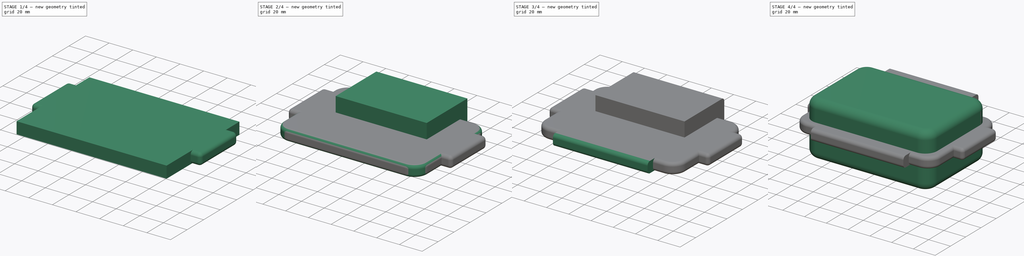
[diagram: build sequence overview — one tinted view per stage of 4, left to right]
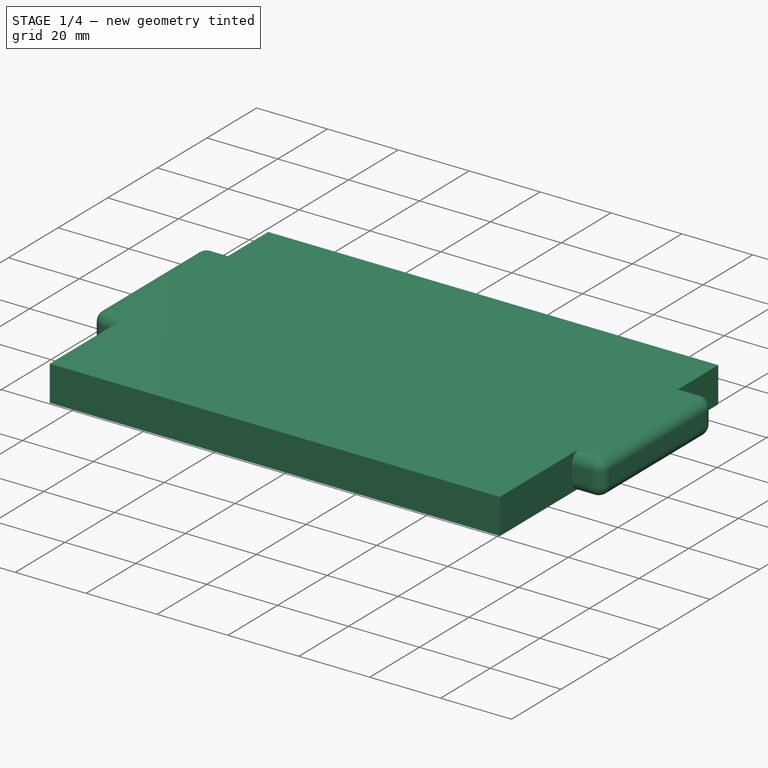
[diagram: stage 1 of 4 — iso view after this stage's code; geometry added in this stage tinted green]
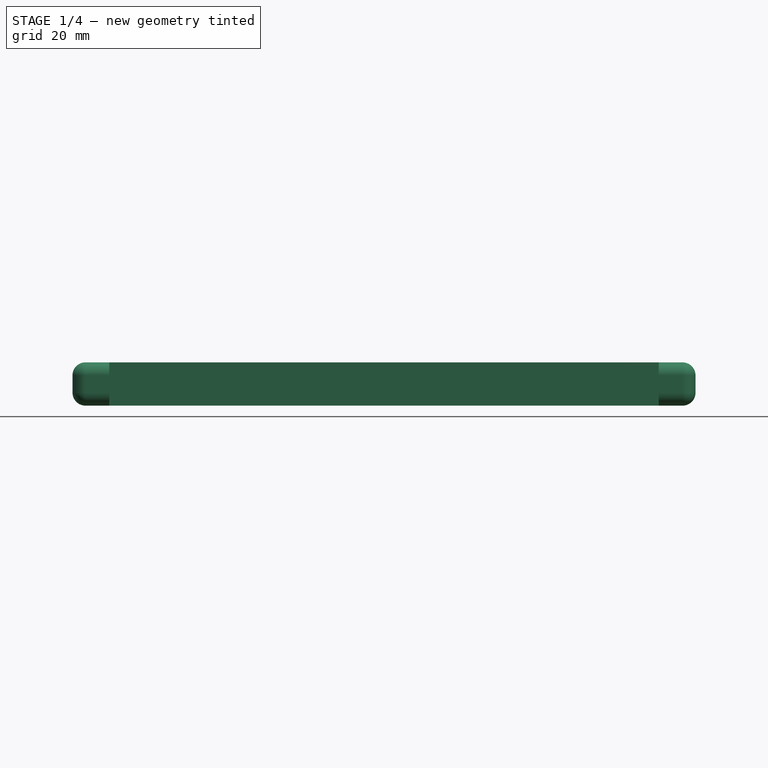
[diagram: stage 1 of 4 — front view after this stage's code; geometry added in this stage tinted green]
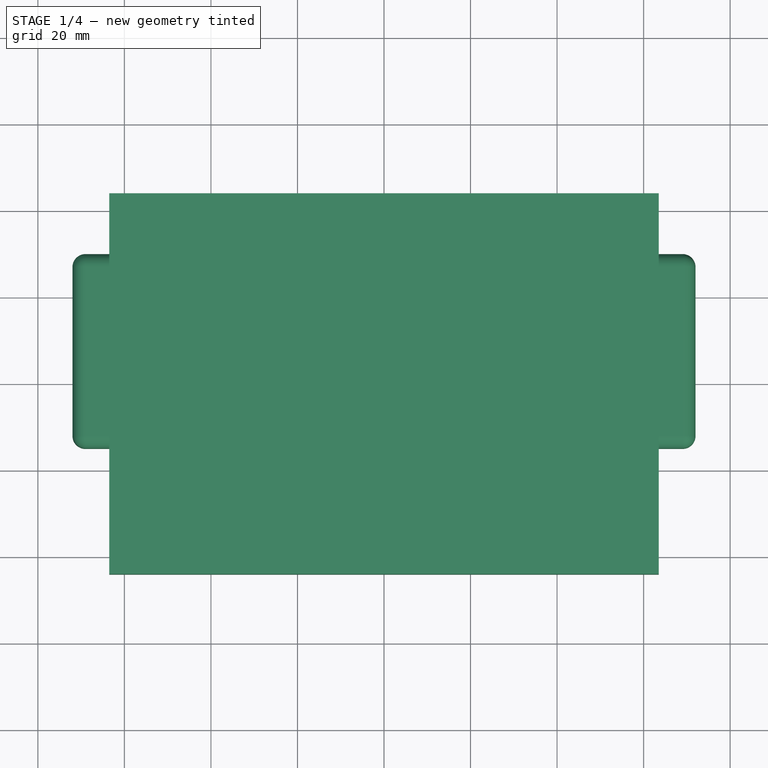
[diagram: stage 1 of 4 — top view after this stage's code; geometry added in this stage tinted green]
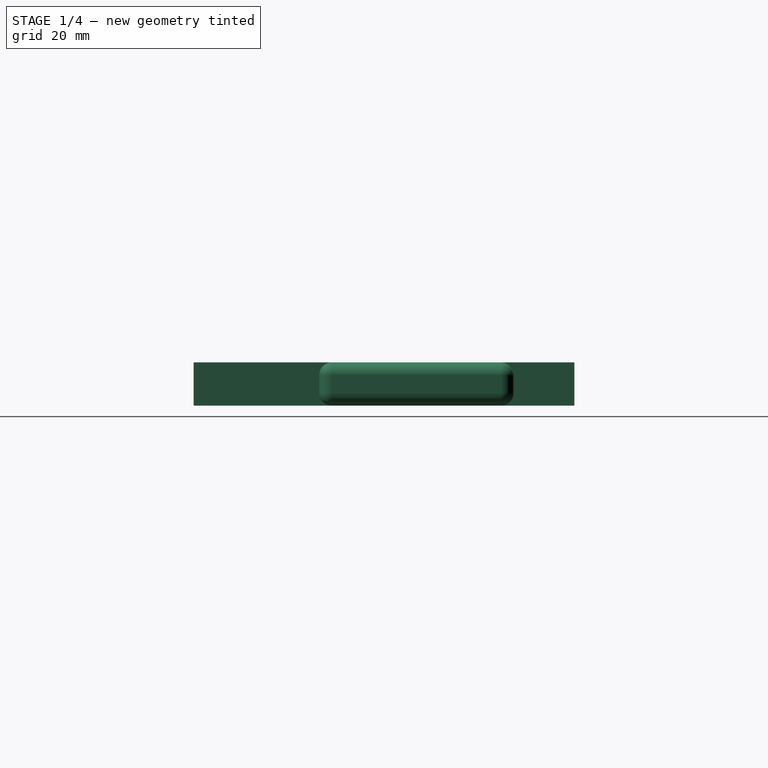
[diagram: stage 1 of 4 — right view after this stage's code; geometry added in this stage tinted green]
FCSTD DOCUMENT  (FreeCAD 0.16RUnknown)
Label: pelicase
License: All rights reserved
LicenseURL: http://en.wikipedia.org/wiki/All_rights_reserved
objects: PartDesign::Fillet×7, Sketcher::SketchObject×5, PartDesign::Pad×5, App::DocumentObjectGroup×1
note: 22 computed .brp shape members not serialized (recipe doc carries the construction recipe); baked Part::Feature solids carry a one-line shape summary decoded from their .brp

FEATURE [Sketcher::SketchObject] Sketch001
  Placement = pos=(0,0,22) rot=(0,0,1;0rad)
  sketch-geometry (4):
    g0: LineSegment StartX=-63.5 StartY=44 StartZ=0 EndX=63.5 EndY=44 EndZ=0
    g1: LineSegment StartX=63.5 StartY=44 StartZ=0 EndX=63.5 EndY=-44 EndZ=0
    g2: LineSegment StartX=63.5 StartY=-44 StartZ=0 EndX=-63.5 EndY=-44 EndZ=0
    g3: LineSegment StartX=-63.5 StartY=-44 StartZ=0 EndX=-63.5 EndY=44 EndZ=0
  constraints (12):
    c: Coincident(g0,g1)
    c: Coincident(g1,g2)
    c: Coincident(g2,g3)
    c: Coincident(g3,g0)
    c: Horizontal(g0)
    c: Horizontal(g2)
    c: Vertical(g1)
    c: Vertical(g3)
    c: Symmetric(g0,g1,g-1)
    c: DistanceX(g0,g0) = 127
    c: DistanceY(g3,g3) = 88
    c: Symmetric(g0,g0,g-2)
FEATURE [PartDesign::Pad] Pad001
  Length = 10
  Length2 = 100
  Placement = pos=(0,0,22) rot=(0,0,1;0rad)
  Sketch = -> Sketch001
  Type = 0
FEATURE [Sketcher::SketchObject] Sketch002
  Placement = pos=(0,0,22) rot=(0,0,1;0rad)
  sketch-geometry (4):
    g0: LineSegment StartX=-72 StartY=30 StartZ=0 EndX=72 EndY=30 EndZ=0
    g1: LineSegment StartX=72 StartY=30 StartZ=0 EndX=72 EndY=-15 EndZ=0
    g2: LineSegment StartX=72 StartY=-15 StartZ=0 EndX=-72 EndY=-15 EndZ=0
    g3: LineSegment StartX=-72 StartY=-15 StartZ=0 EndX=-72 EndY=30 EndZ=0
  constraints (12):
    c: Coincident(g0,g1)
    c: Coincident(g1,g2)
    c: Coincident(g2,g3)
    c: Coincident(g3,g0)
    c: Horizontal(g0)
    c: Horizontal(g2)
    c: Vertical(g1)
    c: Vertical(g3)
    c: DistanceY(g3,g3) = 45
    c: DistanceX(g0,g0) = 144
    c: DistanceY(g-1,g0) = 30
    c: Symmetric(g0,g0,g-2)
FEATURE [PartDesign::Pad] Pad002
  Length = 10
  Length2 = 100
  Placement = pos=(0,0,22) rot=(0,0,1;0rad)
  Sketch = -> Sketch002
  Type = 0
FEATURE [PartDesign::Fillet] Fillet006
  Base = -> Pad002 [Edge4,Edge7,Edge10,Edge12,Edge3,Edge6,Edge9,Edge11,Edge1,Edge2,Edge5,Edge8]
  Placement = pos=(0,0,22) rot=(0,0,1;0rad)
  Radius = 3
FEATURE [App::DocumentObjectGroup] Group
  Group = -> [Fillet006,Fillet005,Fillet004,Fillet001,Fillet003]
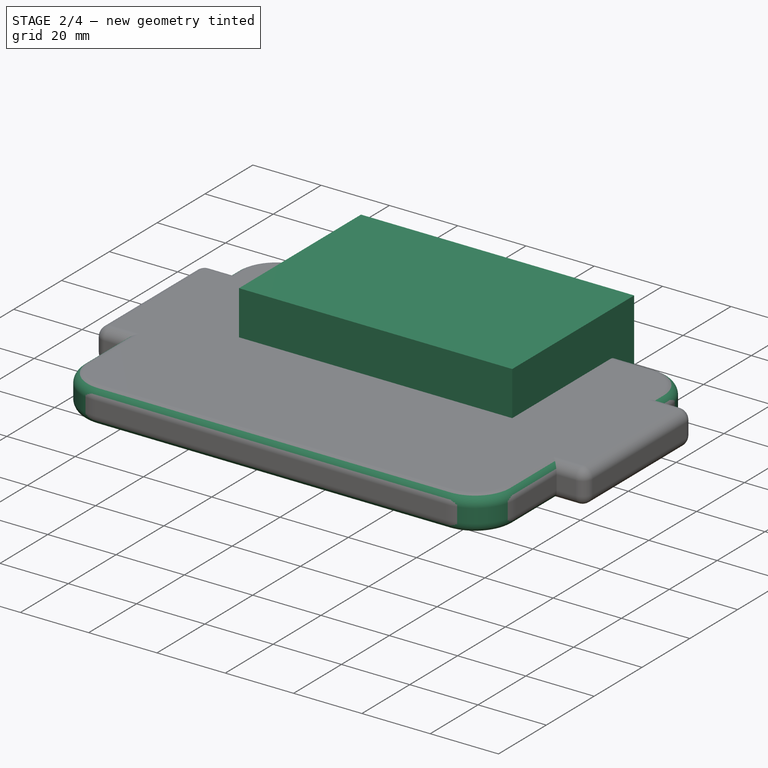
[diagram: stage 2 of 4 — iso view after this stage's code; geometry added in this stage tinted green]
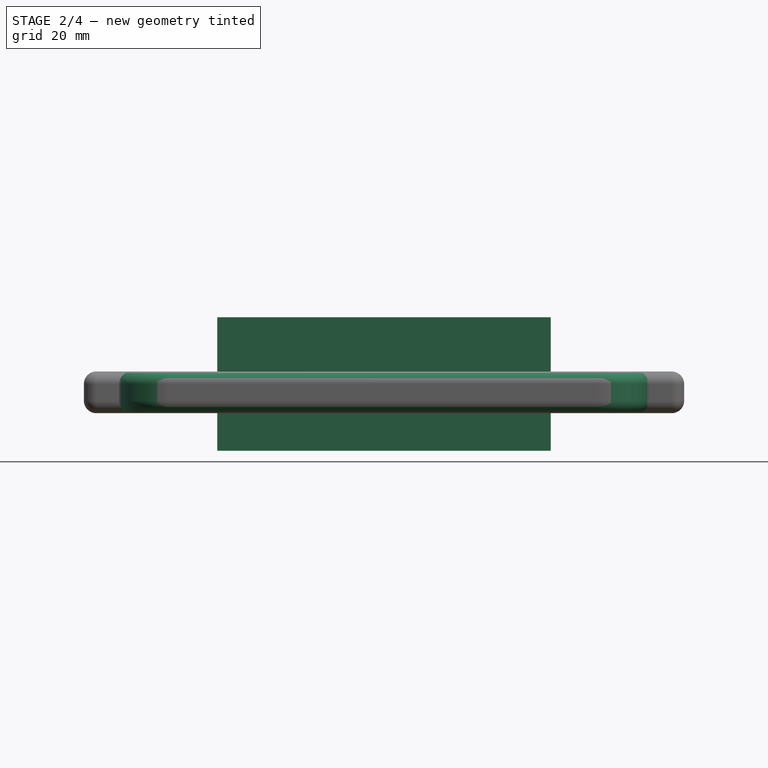
[diagram: stage 2 of 4 — front view after this stage's code; geometry added in this stage tinted green]
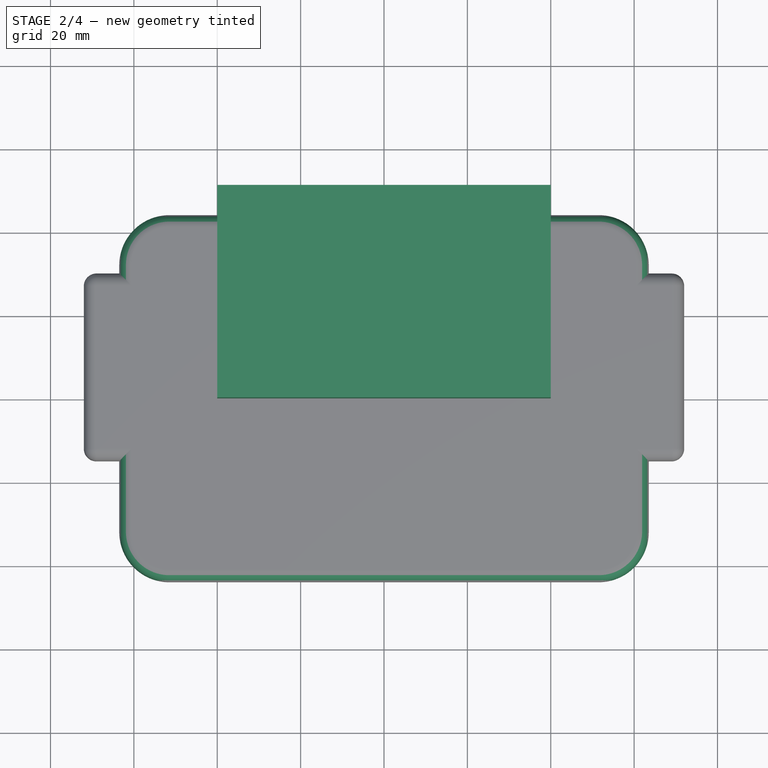
[diagram: stage 2 of 4 — top view after this stage's code; geometry added in this stage tinted green]
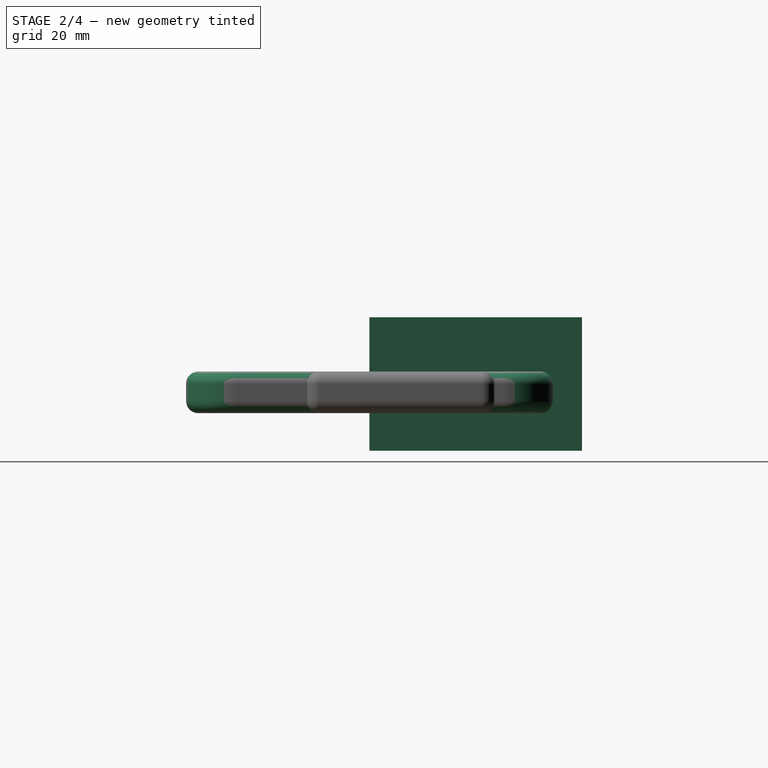
[diagram: stage 2 of 4 — right view after this stage's code; geometry added in this stage tinted green]
FEATURE [Sketcher::SketchObject] Sketch004
  Placement = pos=(0,0,13) rot=(0,0,1;0rad)
  sketch-geometry (4):
    g0: LineSegment StartX=-40 StartY=51 StartZ=0 EndX=40 EndY=51 EndZ=0
    g1: LineSegment StartX=40 StartY=51 StartZ=0 EndX=40 EndY=0 EndZ=0
    g2: LineSegment StartX=40 StartY=0 StartZ=0 EndX=-40 EndY=0 EndZ=0
    g3: LineSegment StartX=-40 StartY=0 StartZ=0 EndX=-40 EndY=51 EndZ=0
  constraints (12):
    c: Coincident(g0,g1)
    c: Coincident(g1,g2)
    c: Coincident(g2,g3)
    c: Coincident(g3,g0)
    c: Horizontal(g0)
    c: Horizontal(g2)
    c: Vertical(g1)
    c: Vertical(g3)
    c: PointOnObject(g1,g-1)
    c: DistanceY(g1,g1) = 51
    c: Symmetric(g0,g0,g-2)
    c: DistanceX(g0,g0) = 80
FEATURE [PartDesign::Pad] Pad004
  Length = 32
  Length2 = 100
  Placement = pos=(0,0,13) rot=(0,0,1;0rad)
  Sketch = -> Sketch004
  Type = 0
FEATURE [PartDesign::Fillet] Fillet002
  Base = -> Pad001 [Edge1,Edge8,Edge5,Edge2]
  Placement = pos=(0,0,22) rot=(0,0,1;0rad)
  Radius = 12
FEATURE [PartDesign::Fillet] Fillet005
  Base = -> Fillet002 [Edge4,Edge13,Edge15,Edge16,Edge17,Edge18,Edge19,Edge20,Edge1,Edge5,Edge6,Edge7,Edge8,Edge9,Edge10,Edge11]
  Placement = pos=(0,0,22) rot=(0,0,1;0rad)
  Radius = 3
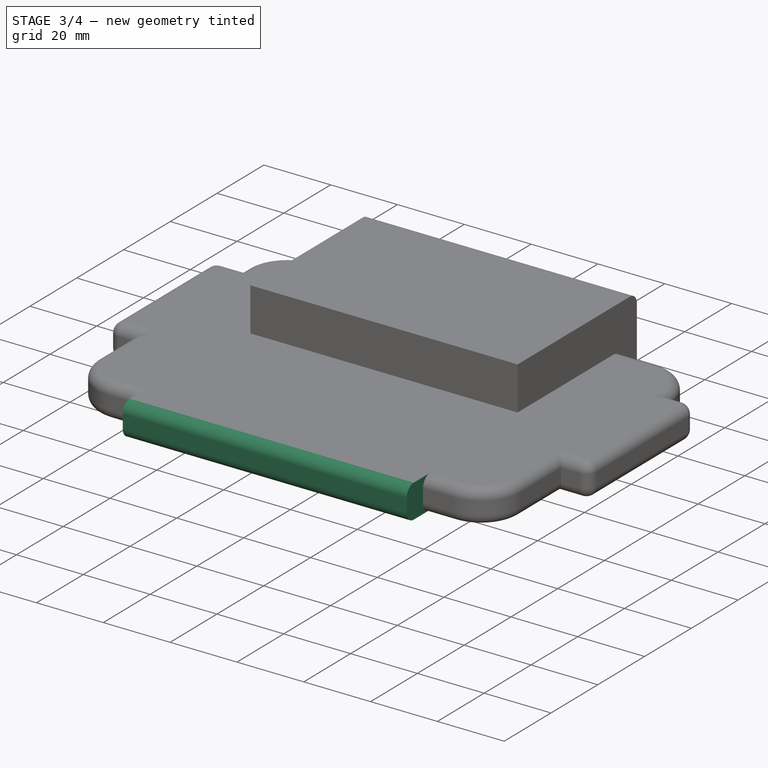
[diagram: stage 3 of 4 — iso view after this stage's code; geometry added in this stage tinted green]
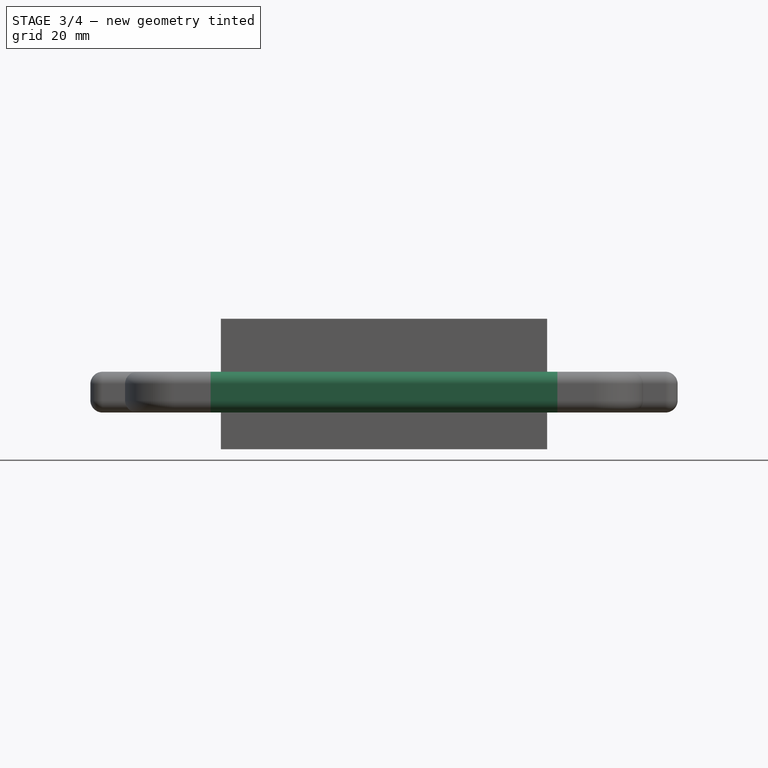
[diagram: stage 3 of 4 — front view after this stage's code; geometry added in this stage tinted green]
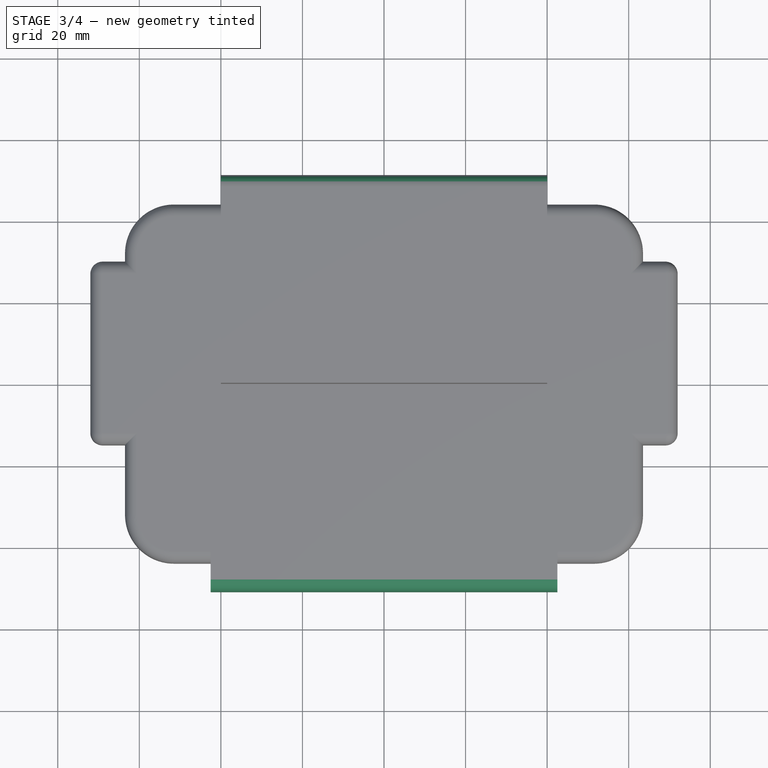
[diagram: stage 3 of 4 — top view after this stage's code; geometry added in this stage tinted green]
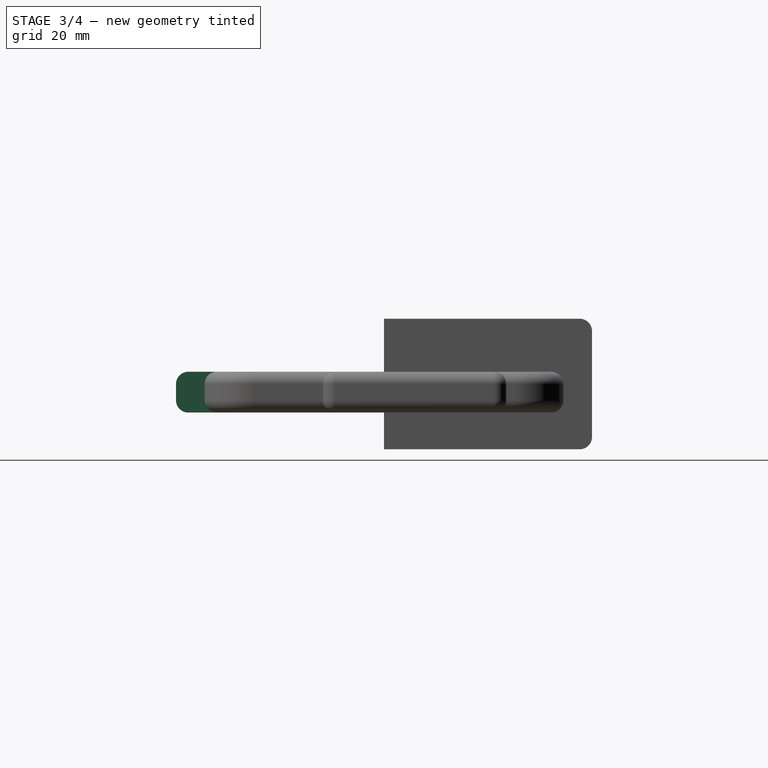
[diagram: stage 3 of 4 — right view after this stage's code; geometry added in this stage tinted green]
FEATURE [Sketcher::SketchObject] Sketch003
  Placement = pos=(0,0,22) rot=(0,0,1;0rad)
  sketch-geometry (4):
    g0: LineSegment StartX=-42.5 StartY=0 StartZ=0 EndX=42.5 EndY=0 EndZ=0
    g1: LineSegment StartX=42.5 StartY=0 StartZ=0 EndX=42.5 EndY=-51 EndZ=0
    g2: LineSegment StartX=42.5 StartY=-51 StartZ=0 EndX=-42.5 EndY=-51 EndZ=0
    g3: LineSegment StartX=-42.5 StartY=-51 StartZ=0 EndX=-42.5 EndY=0 EndZ=0
  constraints (12):
    c: Coincident(g0,g1)
    c: Coincident(g1,g2)
    c: Coincident(g2,g3)
    c: Coincident(g3,g0)
    c: Horizontal(g0)
    c: Horizontal(g2)
    c: Vertical(g1)
    c: Vertical(g3)
    c: DistanceX(g2,g2) = 85
    c: Symmetric(g1,g2,g-2)
    c: PointOnObject(g0,g-1)
    c: DistanceY(g1,g1) = 51
FEATURE [PartDesign::Pad] Pad003
  Length = 10
  Length2 = 100
  Placement = pos=(0,0,22) rot=(0,0,1;0rad)
  Sketch = -> Sketch003
  Type = 0
FEATURE [PartDesign::Fillet] Fillet003
  Base = -> Pad003 [Edge9,Edge10]
  Placement = pos=(0,0,22) rot=(0,0,1;0rad)
  Radius = 3
FEATURE [PartDesign::Fillet] Fillet004
  Base = -> Pad004 [Edge4,Edge3]
  Placement = pos=(0,0,13) rot=(0,0,1;0rad)
  Radius = 3
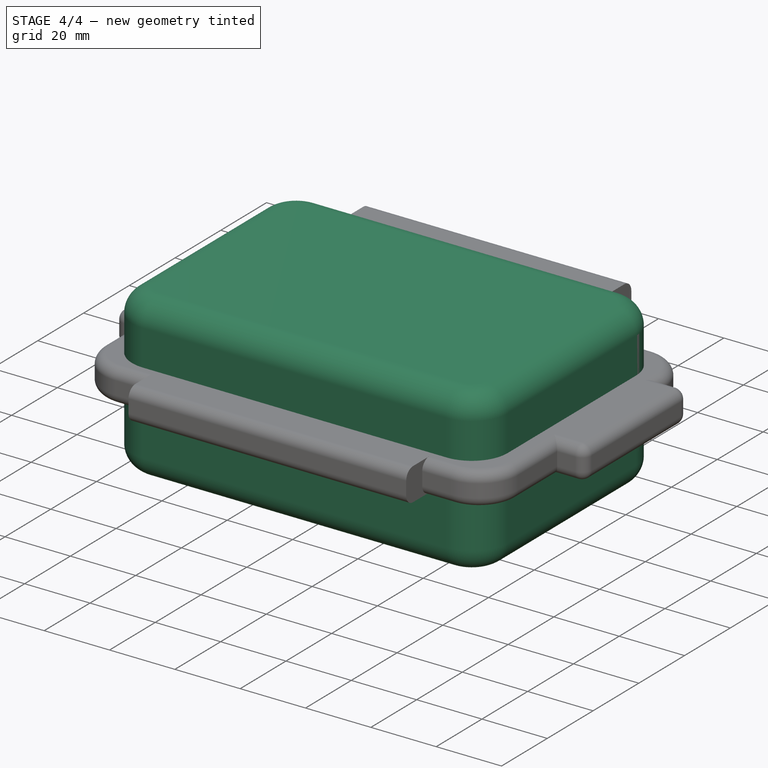
[diagram: stage 4 of 4 — iso view after this stage's code; geometry added in this stage tinted green]
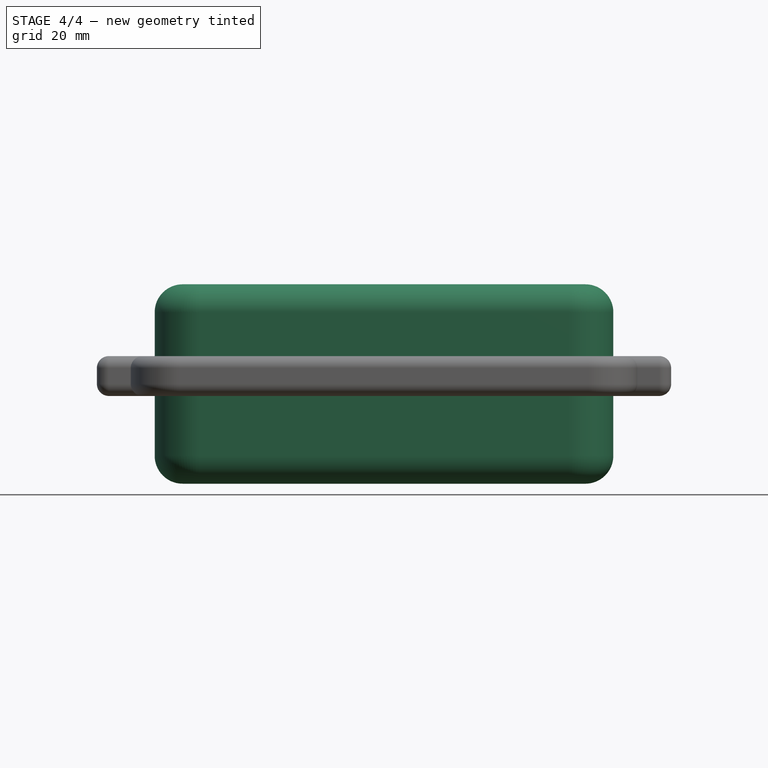
[diagram: stage 4 of 4 — front view after this stage's code; geometry added in this stage tinted green]
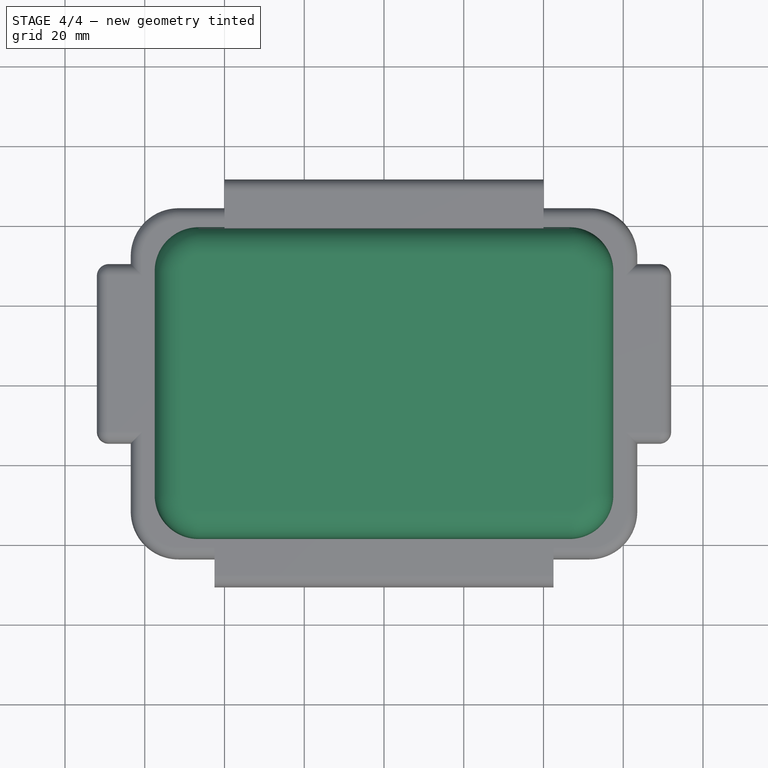
[diagram: stage 4 of 4 — top view after this stage's code; geometry added in this stage tinted green]
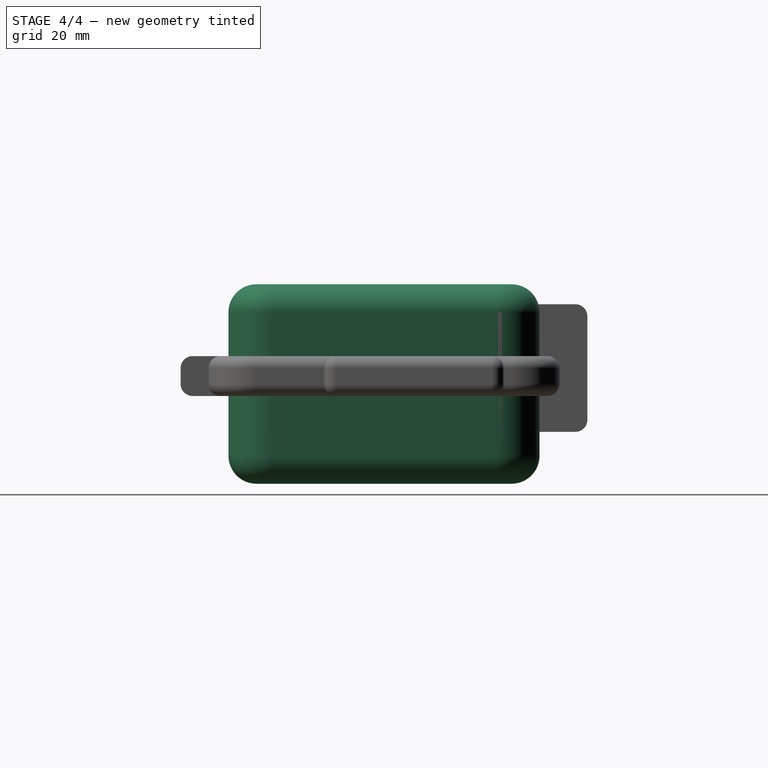
[diagram: stage 4 of 4 — right view after this stage's code; geometry added in this stage tinted green]
FEATURE [Sketcher::SketchObject] Sketch
  sketch-geometry (4):
    g0: LineSegment StartX=-57.5 StartY=39 StartZ=0 EndX=57.5 EndY=39 EndZ=0
    g1: LineSegment StartX=57.5 StartY=39 StartZ=0 EndX=57.5 EndY=-39 EndZ=0
    g2: LineSegment StartX=57.5 StartY=-39 StartZ=0 EndX=-57.5 EndY=-39 EndZ=0
    g3: LineSegment StartX=-57.5 StartY=-39 StartZ=0 EndX=-57.5 EndY=39 EndZ=0
  constraints (12):
    c: Coincident(g0,g1)
    c: Coincident(g1,g2)
    c: Coincident(g2,g3)
    c: Coincident(g3,g0)
    c: Horizontal(g0)
    c: Horizontal(g2)
    c: Vertical(g1)
    c: Vertical(g3)
    c: DistanceX(g0,g0) = 115
    c: DistanceY(g2,g0) = 78
    c: Symmetric(g0,g2,g-1)
    c: Symmetric(g0,g0,g-2)
FEATURE [PartDesign::Pad] Pad
  Length = 50
  Length2 = 100
  Sketch = -> Sketch
  Type = 0
FEATURE [PartDesign::Fillet] Fillet
  Base = -> Pad [Edge2,Edge5,Edge8,Edge1]
  Radius = 11
FEATURE [PartDesign::Fillet] Fillet001
  Base = -> Fillet [Edge4,Edge13,Edge15,Edge16,Edge17,Edge18,Edge19,Edge20,Edge1,Edge5,Edge6,Edge7,Edge8,Edge9,Edge10,Edge11]
  Radius = 7
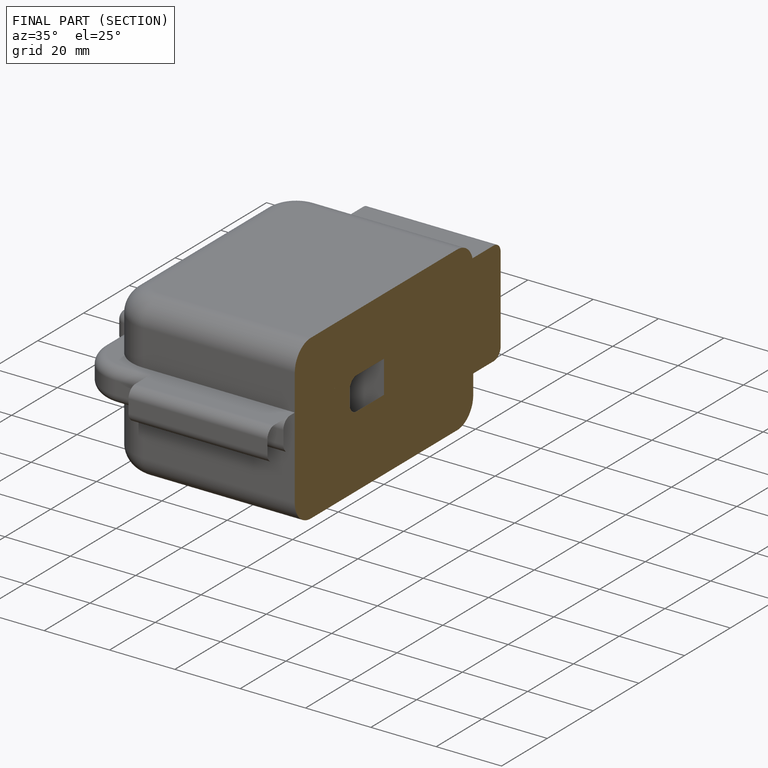
[diagram: finished part — half-section view (interior)]
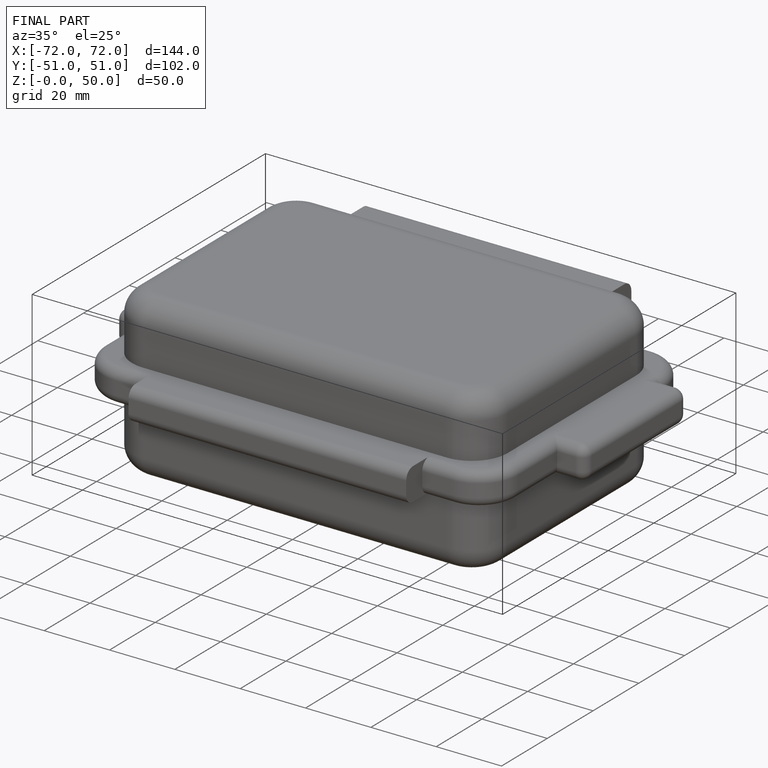
[diagram: finished part — iso view with bounding-box wireframe]
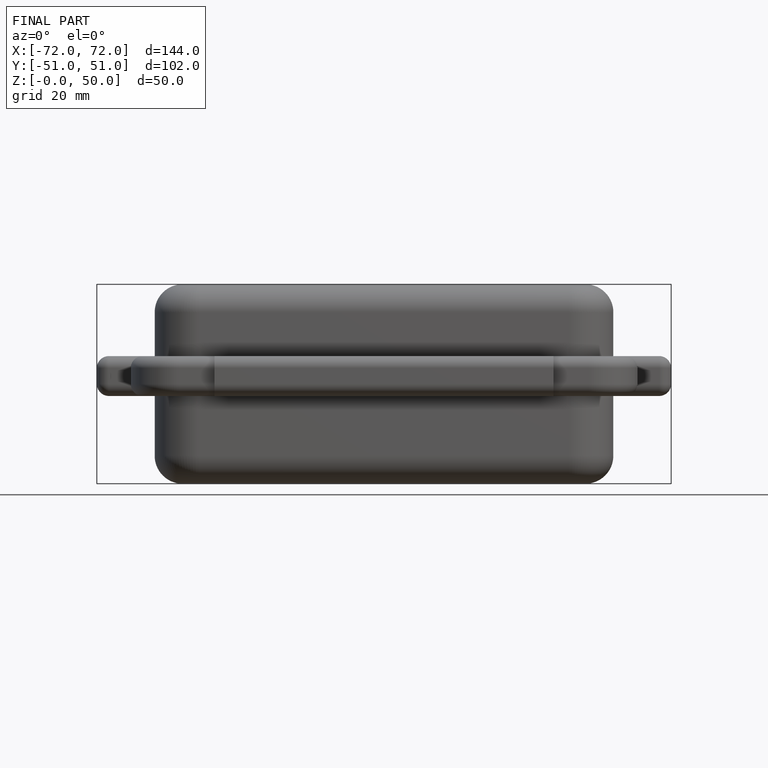
[diagram: finished part — front view with bounding-box wireframe]
